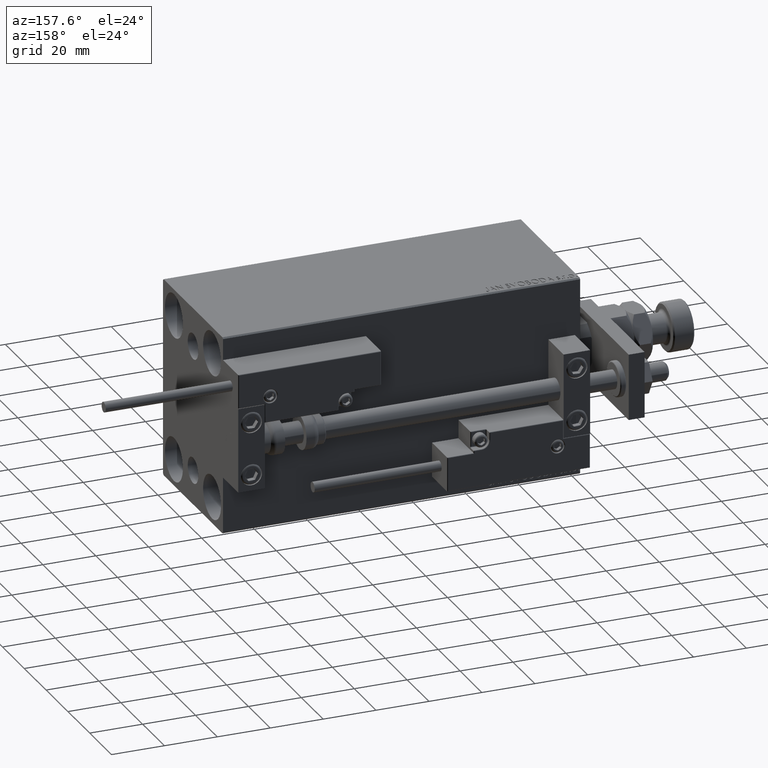
[diagram: clean part render]
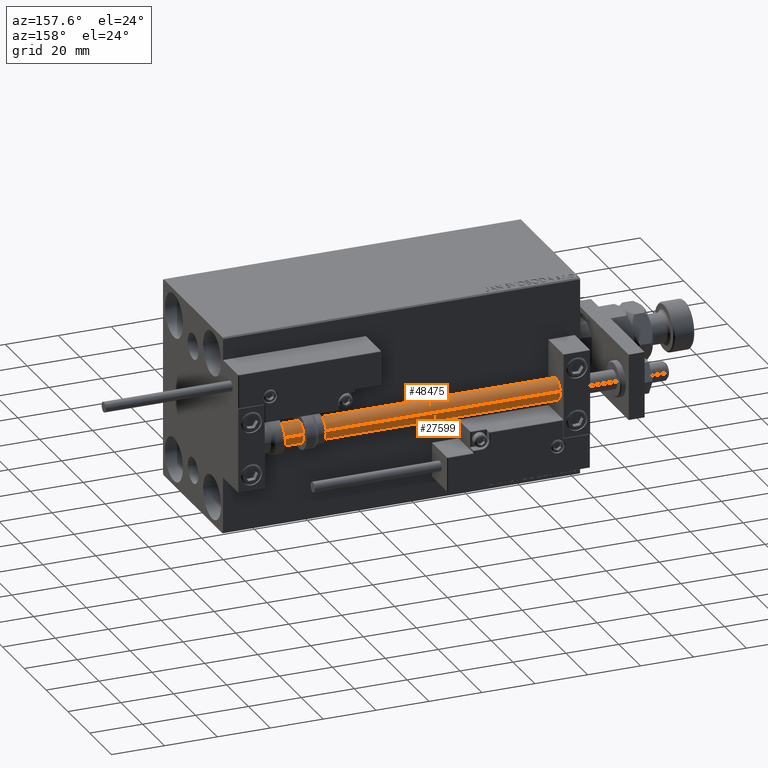
[diagram: same view with one multi-face feature highlighted, each face labeled with its STEP entity id]
A machine part, auxiliary view. The highlighted faces form ONE feature: a constant-radius fillet chain: 2 tangent blend faces with common blend radius 4 mm. The faces share edges in the B-rep.
Their STEP definitions:
[1] entity #27599 (Cylinder):
#2357 = CARTESIAN_POINT ( 'NONE',  ( 0.000000000000000000, 0.000000000000000000, 2.000000000000029310 ) ) ;
#2503 = AXIS2_PLACEMENT_3D ( 'NONE', #2357, #22432, #29745 ) ;
#5236 = AXIS2_PLACEMENT_3D ( 'NONE', #32913, #49344, #40751 ) ;
#5679 = DIRECTION ( 'NONE',  ( 0.000000000000000000, 0.000000000000000000, 1.000000000000000000 ) ) ;
#7132 = VECTOR ( 'NONE', #25814, 1000.000000000000000 ) ;
#8191 = VERTEX_POINT ( 'NONE', #31301 ) ;
#8920 = CYLINDRICAL_SURFACE ( 'NONE', #5236, 4.000000000000000000 ) ;
#9327 = LINE ( 'NONE', #14008, #31406 ) ;
#12058 = EDGE_CURVE ( 'NONE', #15860, #35281, #13288, .T. ) ;
#13288 = CIRCLE ( 'NONE', #24138, 4.000000000000000000 ) ;
#13761 = CARTESIAN_POINT ( 'NONE',  ( 0.000000000000000000, 0.000000000000000000, 135.0000000000000000 ) ) ;
#14008 = CARTESIAN_POINT ( 'NONE',  ( 4.000000000000000000, 4.898587196589412829E-16, 135.0000000000000000 ) ) ;
#15860 = VERTEX_POINT ( 'NONE', #34292 ) ;
#16207 = EDGE_CURVE ( 'NONE', #8191, #42720, #46654, .T. ) ;
#19996 = ORIENTED_EDGE ( 'NONE', *, *, #43185, .T. ) ;
#21380 = ORIENTED_EDGE ( 'NONE', *, *, #16207, .T. ) ;
#21856 = DIRECTION ( 'NONE',  ( 1.000000000000000000, 0.000000000000000000, 0.000000000000000000 ) ) ;
#22432 = DIRECTION ( 'NONE',  ( -0.000000000000000000, -0.000000000000000000, 1.000000000000000000 ) ) ;
#22924 = CARTESIAN_POINT ( 'NONE',  ( 4.000000000000000000, 4.898587196589412829E-16, 2.000000000000029310 ) ) ;
#23985 = EDGE_LOOP ( 'NONE', ( #46204, #42732, #19996, #21380 ) ) ;
#24138 = AXIS2_PLACEMENT_3D ( 'NONE', #13761, #5679, #21856 ) ;
#25814 = DIRECTION ( 'NONE',  ( -0.000000000000000000, -0.000000000000000000, -1.000000000000000000 ) ) ;
#27599 = ADVANCED_FACE ( 'NONE', ( #44403 ), #8920, .T. ) ;
#29151 = DIRECTION ( 'NONE',  ( -0.000000000000000000, -0.000000000000000000, -1.000000000000000000 ) ) ;
#29745 = DIRECTION ( 'NONE',  ( 1.000000000000000000, 0.000000000000000000, 0.000000000000000000 ) ) ;
#31301 = CARTESIAN_POINT ( 'NONE',  ( -4.000000000000000000, 0.000000000000000000, 2.000000000000029310 ) ) ;
#31406 = VECTOR ( 'NONE', #29151, 1000.000000000000000 ) ;
#32913 = CARTESIAN_POINT ( 'NONE',  ( 0.000000000000000000, 0.000000000000000000, 135.0000000000000000 ) ) ;
#34292 = CARTESIAN_POINT ( 'NONE',  ( -4.000000000000000000, 0.000000000000000000, 135.0000000000000000 ) ) ;
#35281 = VERTEX_POINT ( 'NONE', #47051 ) ;
#40751 = DIRECTION ( 'NONE',  ( -1.000000000000000000, 0.000000000000000000, 0.000000000000000000 ) ) ;
#42720 = VERTEX_POINT ( 'NONE', #22924 ) ;
#42732 = ORIENTED_EDGE ( 'NONE', *, *, #12058, .F. ) ;
#43185 = EDGE_CURVE ( 'NONE', #15860, #8191, #46396, .T. ) ;
#44403 = FACE_OUTER_BOUND ( 'NONE', #23985, .T. ) ;
#46204 = ORIENTED_EDGE ( 'NONE', *, *, #46426, .F. ) ;
#46396 = LINE ( 'NONE', #50836, #7132 ) ;
#46426 = EDGE_CURVE ( 'NONE', #35281, #42720, #9327, .T. ) ;
#46654 = CIRCLE ( 'NONE', #2503, 4.000000000000000000 ) ;
#47051 = CARTESIAN_POINT ( 'NONE',  ( 4.000000000000000000, 4.898587196589412829E-16, 135.0000000000000000 ) ) ;
#49344 = DIRECTION ( 'NONE',  ( -0.000000000000000000, -0.000000000000000000, -1.000000000000000000 ) ) ;
#50836 = CARTESIAN_POINT ( 'NONE',  ( -4.000000000000000000, 0.000000000000000000, 135.0000000000000000 ) ) ;
[2] entity #48475 (Cylinder):
#1613 = EDGE_LOOP ( 'NONE', ( #20766, #35915, #24067, #4292 ) ) ;
#3581 = DIRECTION ( 'NONE',  ( -1.000000000000000000, 0.000000000000000000, 0.000000000000000000 ) ) ;
#4292 = ORIENTED_EDGE ( 'NONE', *, *, #43185, .F. ) ;
#5722 = DIRECTION ( 'NONE',  ( 0.000000000000000000, 0.000000000000000000, 1.000000000000000000 ) ) ;
#6715 = CYLINDRICAL_SURFACE ( 'NONE', #45620, 4.000000000000000000 ) ;
#7132 = VECTOR ( 'NONE', #25814, 1000.000000000000000 ) ;
#8191 = VERTEX_POINT ( 'NONE', #31301 ) ;
#9327 = LINE ( 'NONE', #14008, #31406 ) ;
#14008 = CARTESIAN_POINT ( 'NONE',  ( 4.000000000000000000, 4.898587196589412829E-16, 135.0000000000000000 ) ) ;
#14059 = DIRECTION ( 'NONE',  ( 1.000000000000000000, 0.000000000000000000, 0.000000000000000000 ) ) ;
#15860 = VERTEX_POINT ( 'NONE', #34292 ) ;
#20766 = ORIENTED_EDGE ( 'NONE', *, *, #33762, .F. ) ;
#22739 = CIRCLE ( 'NONE', #44412, 4.000000000000000000 ) ;
#22924 = CARTESIAN_POINT ( 'NONE',  ( 4.000000000000000000, 4.898587196589412829E-16, 2.000000000000029310 ) ) ;
#23149 = FACE_OUTER_BOUND ( 'NONE', #1613, .T. ) ;
#24067 = ORIENTED_EDGE ( 'NONE', *, *, #25687, .T. ) ;
#25687 = EDGE_CURVE ( 'NONE', #42720, #8191, #27778, .T. ) ;
#25814 = DIRECTION ( 'NONE',  ( -0.000000000000000000, -0.000000000000000000, -1.000000000000000000 ) ) ;
#26249 = CARTESIAN_POINT ( 'NONE',  ( 0.000000000000000000, 0.000000000000000000, 2.000000000000029310 ) ) ;
#27778 = CIRCLE ( 'NONE', #31945, 4.000000000000000000 ) ;
#29151 = DIRECTION ( 'NONE',  ( -0.000000000000000000, -0.000000000000000000, -1.000000000000000000 ) ) ;
#29913 = DIRECTION ( 'NONE',  ( 1.000000000000000000, 0.000000000000000000, 0.000000000000000000 ) ) ;
#31301 = CARTESIAN_POINT ( 'NONE',  ( -4.000000000000000000, 0.000000000000000000, 2.000000000000029310 ) ) ;
#31406 = VECTOR ( 'NONE', #29151, 1000.000000000000000 ) ;
#31945 = AXIS2_PLACEMENT_3D ( 'NONE', #26249, #38251, #29913 ) ;
#33762 = EDGE_CURVE ( 'NONE', #35281, #15860, #22739, .T. ) ;
#34292 = CARTESIAN_POINT ( 'NONE',  ( -4.000000000000000000, 0.000000000000000000, 135.0000000000000000 ) ) ;
#34625 = DIRECTION ( 'NONE',  ( -0.000000000000000000, -0.000000000000000000, -1.000000000000000000 ) ) ;
#35281 = VERTEX_POINT ( 'NONE', #47051 ) ;
#35915 = ORIENTED_EDGE ( 'NONE', *, *, #46426, .T. ) ;
#38251 = DIRECTION ( 'NONE',  ( -0.000000000000000000, -0.000000000000000000, 1.000000000000000000 ) ) ;
#39324 = CARTESIAN_POINT ( 'NONE',  ( 0.000000000000000000, 0.000000000000000000, 135.0000000000000000 ) ) ;
#42720 = VERTEX_POINT ( 'NONE', #22924 ) ;
#43185 = EDGE_CURVE ( 'NONE', #15860, #8191, #46396, .T. ) ;
#44412 = AXIS2_PLACEMENT_3D ( 'NONE', #45621, #5722, #14059 ) ;
#45621 = CARTESIAN_POINT ( 'NONE',  ( 0.000000000000000000, 0.000000000000000000, 135.0000000000000000 ) ) ;
#45620 = AXIS2_PLACEMENT_3D ( 'NONE', #39324, #34625, #3581 ) ;
#46396 = LINE ( 'NONE', #50836, #7132 ) ;
#46426 = EDGE_CURVE ( 'NONE', #35281, #42720, #9327, .T. ) ;
#47051 = CARTESIAN_POINT ( 'NONE',  ( 4.000000000000000000, 4.898587196589412829E-16, 135.0000000000000000 ) ) ;
#48475 = ADVANCED_FACE ( 'NONE', ( #23149 ), #6715, .T. ) ;
#50836 = CARTESIAN_POINT ( 'NONE',  ( -4.000000000000000000, 0.000000000000000000, 135.0000000000000000 ) ) ;